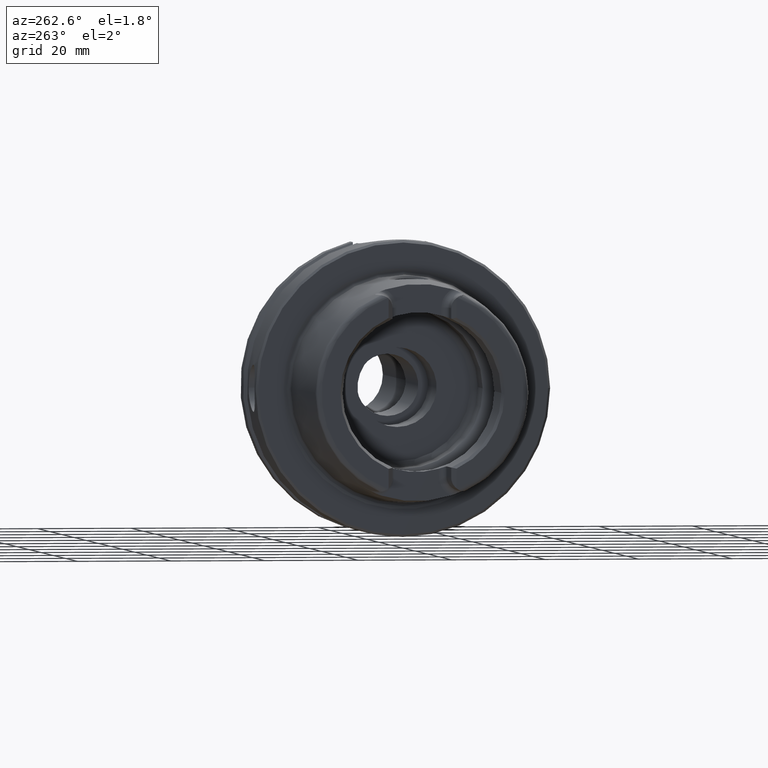
[diagram: clean part render]
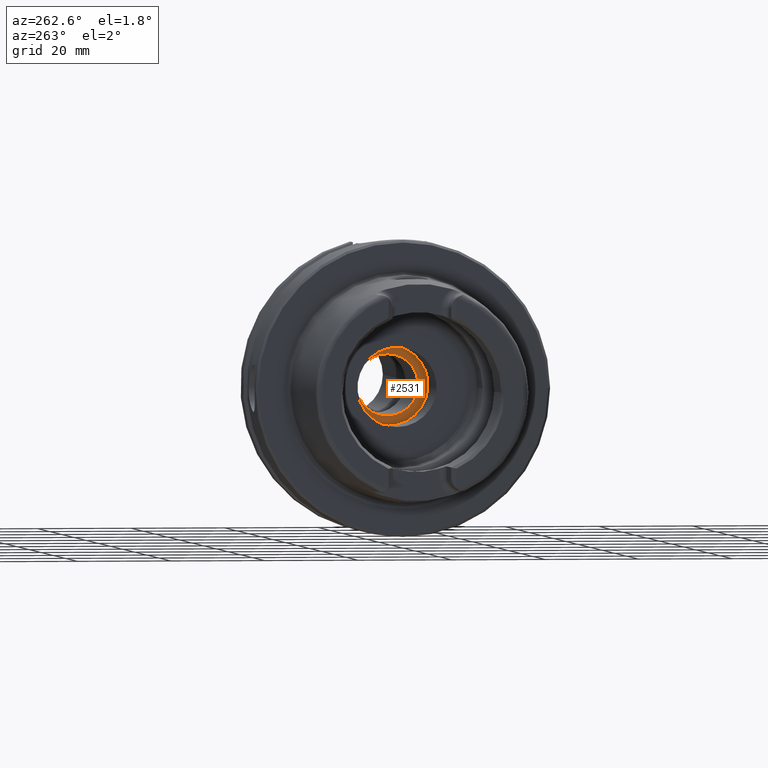
[diagram: same view with one face highlighted and labeled with its STEP entity id]
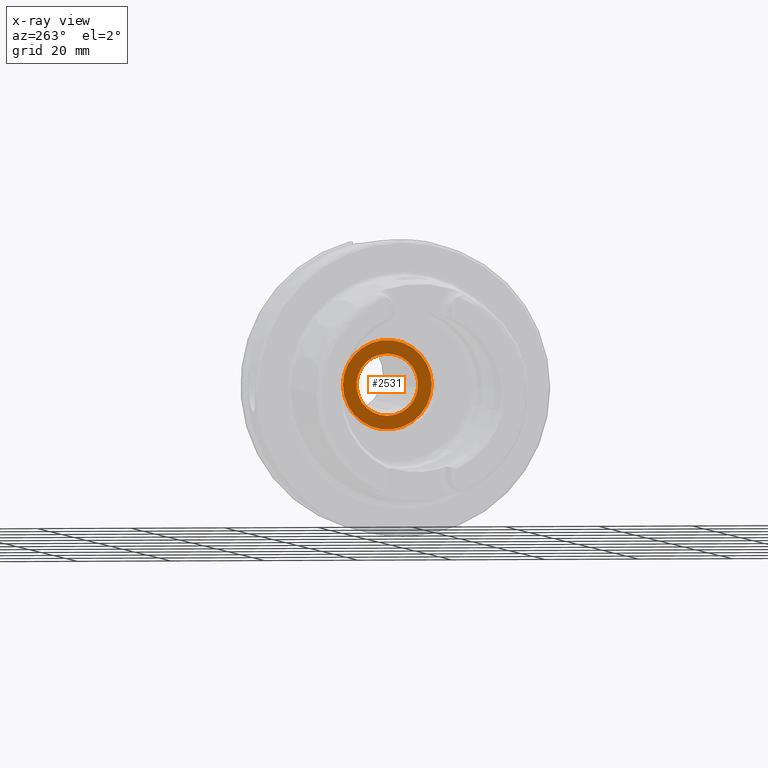
[diagram: x-ray of the same camera — body ghosted, the highlighted face saturated]
A machine part, auxiliary view. The second image highlights one B-rep face of the part: STEP entity #2531.
The next image is the same camera in x-ray: the body ghosted, the highlighted face saturated — about 0% of this face is hidden behind the body in this view.
In plain terms, the highlighted planar face has unit normal (1, 0, 0).
Its self-contained STEP definition (entity closure, byte-faithful):
#151=FACE_BOUND('',#339,.T.);
#161=PLANE('',#2692);
#204=FACE_OUTER_BOUND('',#338,.T.);
#338=EDGE_LOOP('',(#1661,#1662));
#339=EDGE_LOOP('',(#1663));
#712=CIRCLE('',#2686,6.6);
#717=CIRCLE('',#2693,9.5);
#718=CIRCLE('',#2694,9.5);
#938=VERTEX_POINT('',#3904);
#943=VERTEX_POINT('',#3918);
#944=VERTEX_POINT('',#3919);
#1232=EDGE_CURVE('',#938,#938,#712,.T.);
#1238=EDGE_CURVE('',#943,#944,#717,.T.);
#1239=EDGE_CURVE('',#944,#943,#718,.T.);
#1661=ORIENTED_EDGE('',*,*,#1238,.T.);
#1662=ORIENTED_EDGE('',*,*,#1239,.T.);
#1663=ORIENTED_EDGE('',*,*,#1232,.T.);
#2531=ADVANCED_FACE('',(#204,#151),#161,.F.);
#2686=AXIS2_PLACEMENT_3D('',#3906,#3058,#3059);
#2692=AXIS2_PLACEMENT_3D('',#3917,#3071,#3072);
#2693=AXIS2_PLACEMENT_3D('',#3920,#3073,#3074);
#2694=AXIS2_PLACEMENT_3D('',#3921,#3075,#3076);
#3058=DIRECTION('center_axis',(1.,0.,0.));
#3059=DIRECTION('ref_axis',(0.,0.,-1.));
#3071=DIRECTION('center_axis',(1.,0.,0.));
#3072=DIRECTION('ref_axis',(0.,0.,-1.));
#3073=DIRECTION('center_axis',(-1.,0.,0.));
#3074=DIRECTION('ref_axis',(0.,0.,1.));
#3075=DIRECTION('center_axis',(-1.,0.,0.));
#3076=DIRECTION('ref_axis',(0.,0.,1.));
#3904=CARTESIAN_POINT('',(26.,-8.08266887437253E-16,6.6));
#3906=CARTESIAN_POINT('Origin',(26.,0.,0.));
#3917=CARTESIAN_POINT('Origin',(26.,9.5,0.));
#3918=CARTESIAN_POINT('',(26.,9.5,0.));
#3919=CARTESIAN_POINT('',(26.,-9.5,1.16341445918999E-15));
#3920=CARTESIAN_POINT('Origin',(26.,0.,0.));
#3921=CARTESIAN_POINT('Origin',(26.,0.,0.));